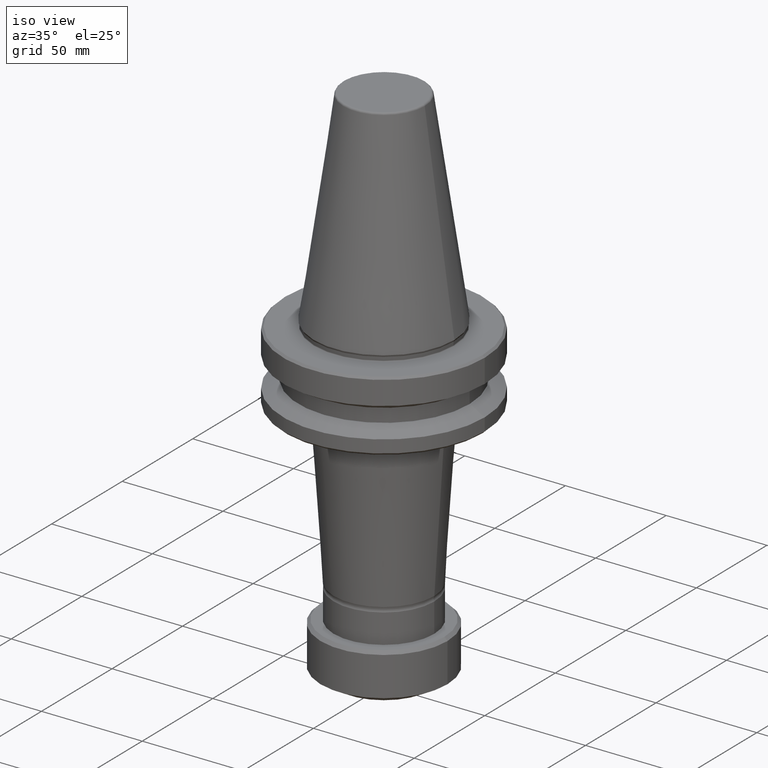
[diagram: clean part render]
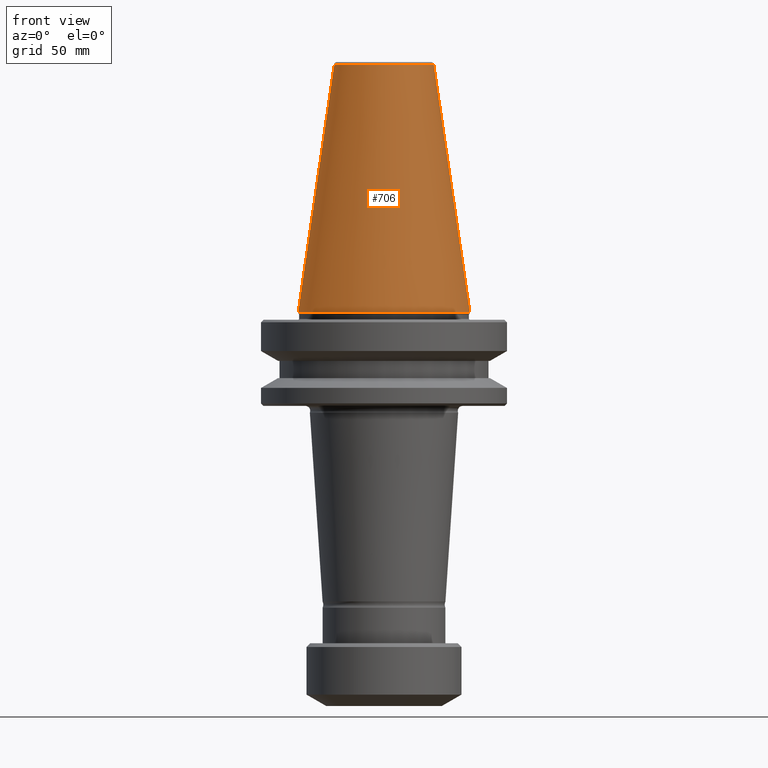
[diagram: tour spotlight — one face highlighted and labeled with its STEP entity id]
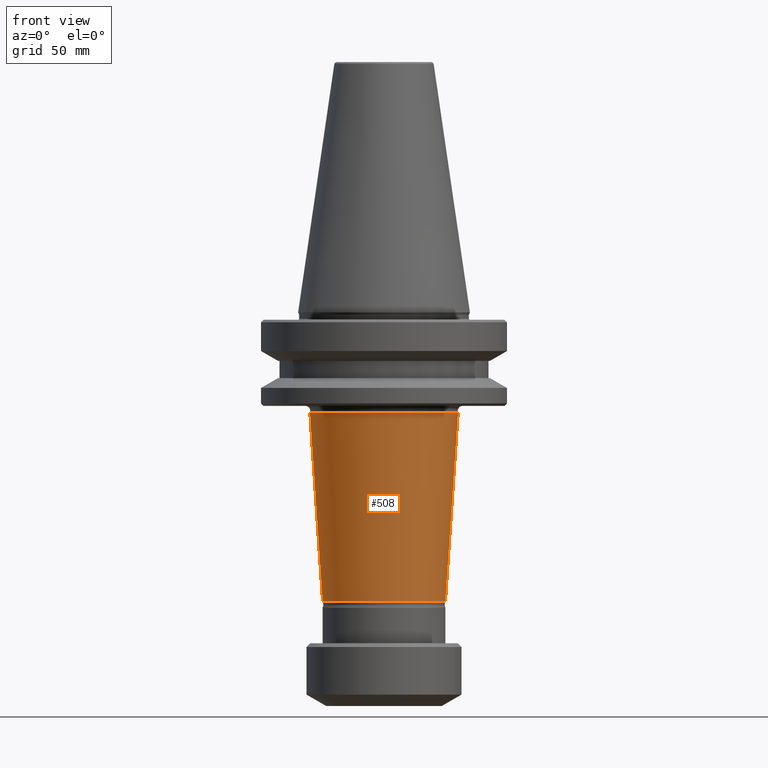
[diagram: tour spotlight — one face highlighted and labeled with its STEP entity id]
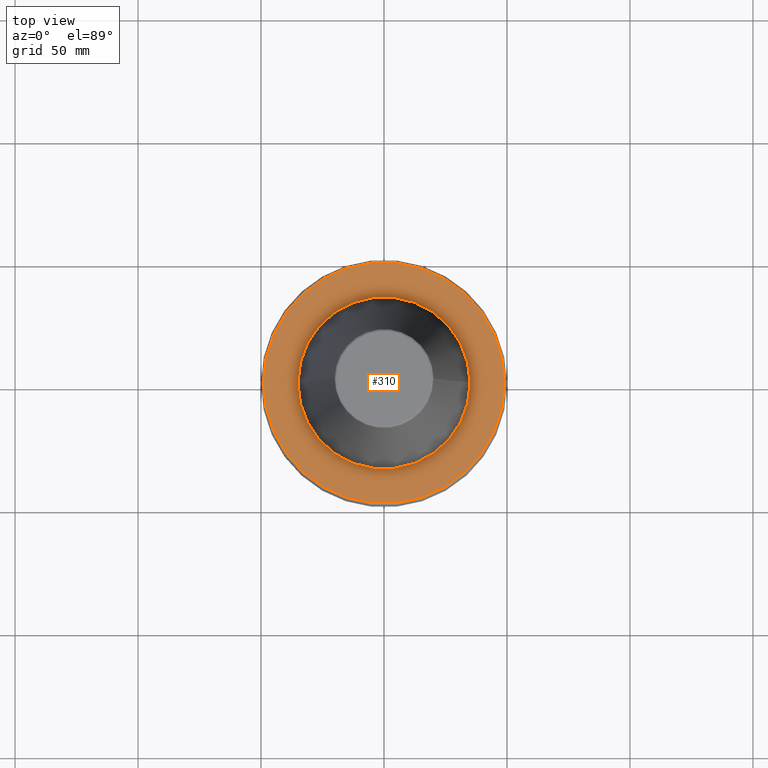
[diagram: tour spotlight — one face highlighted and labeled with its STEP entity id]
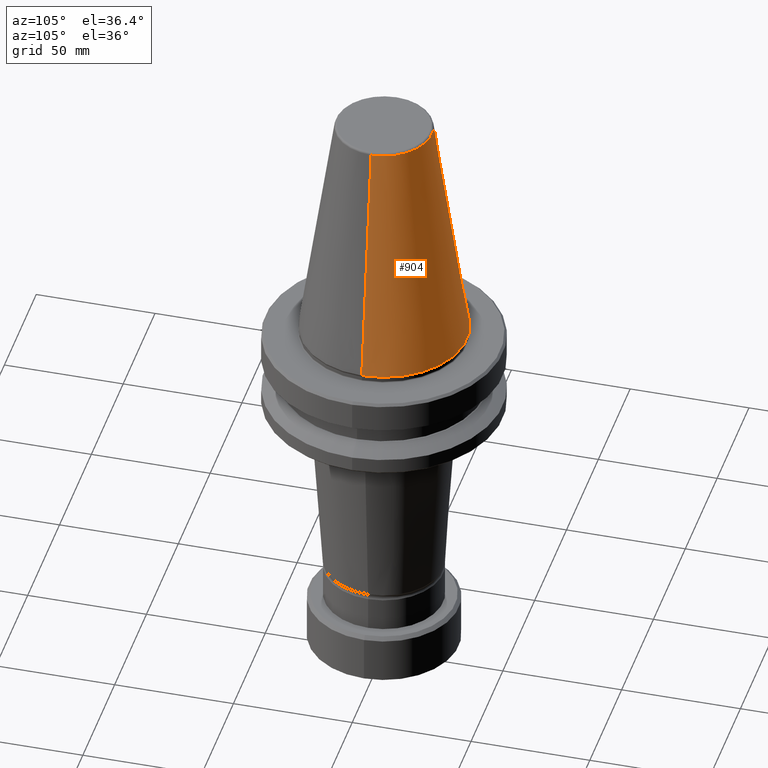
[diagram: tour spotlight — one face highlighted and labeled with its STEP entity id]
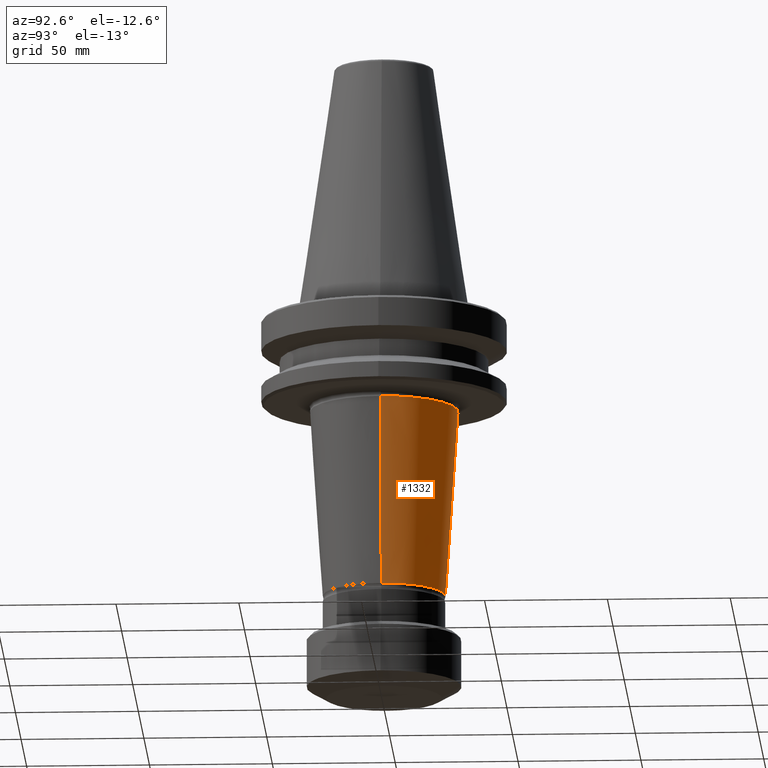
[diagram: tour spotlight — one face highlighted and labeled with its STEP entity id]
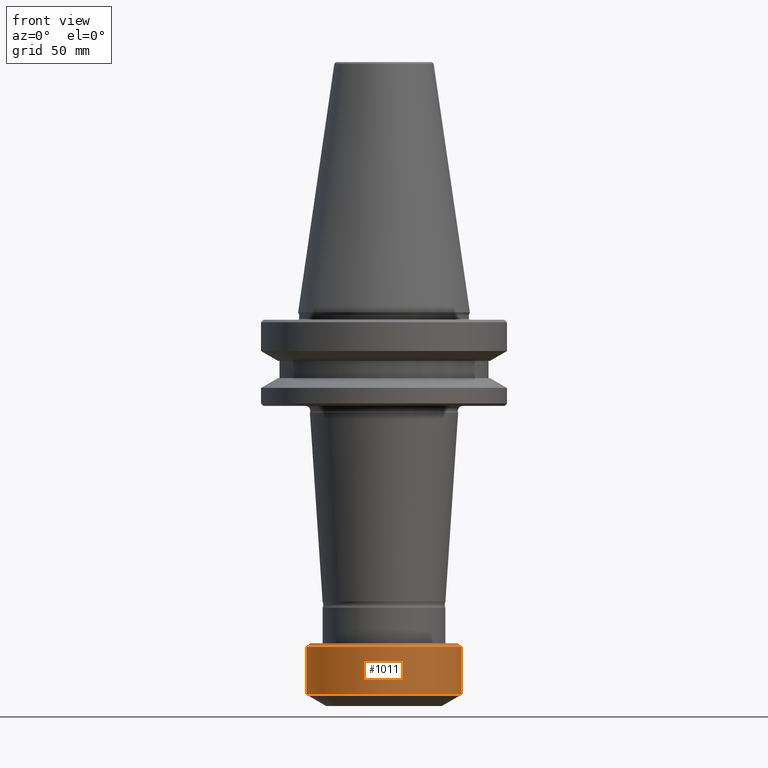
[diagram: tour spotlight — one face highlighted and labeled with its STEP entity id]
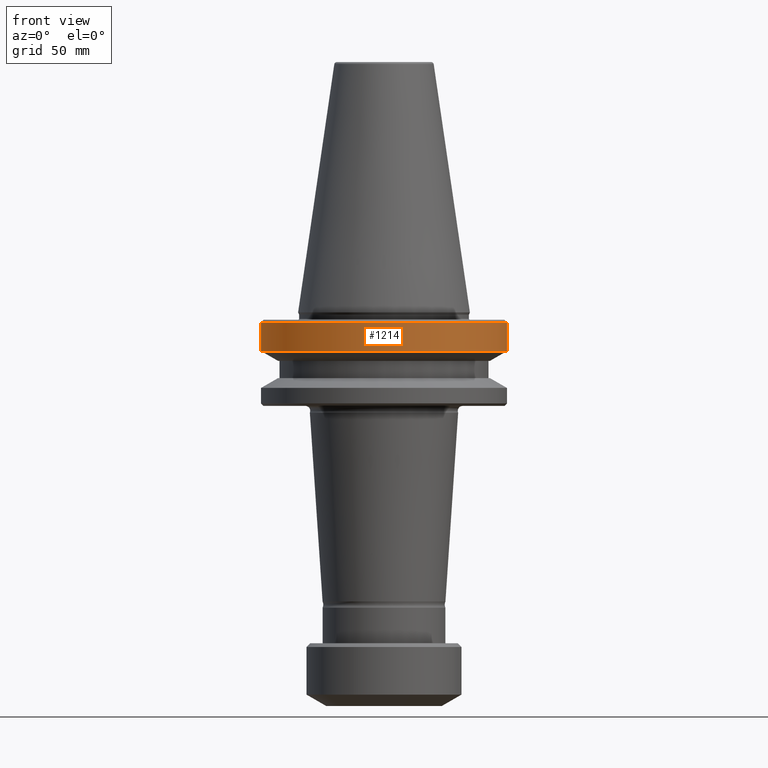
[diagram: tour spotlight — one face highlighted and labeled with its STEP entity id]
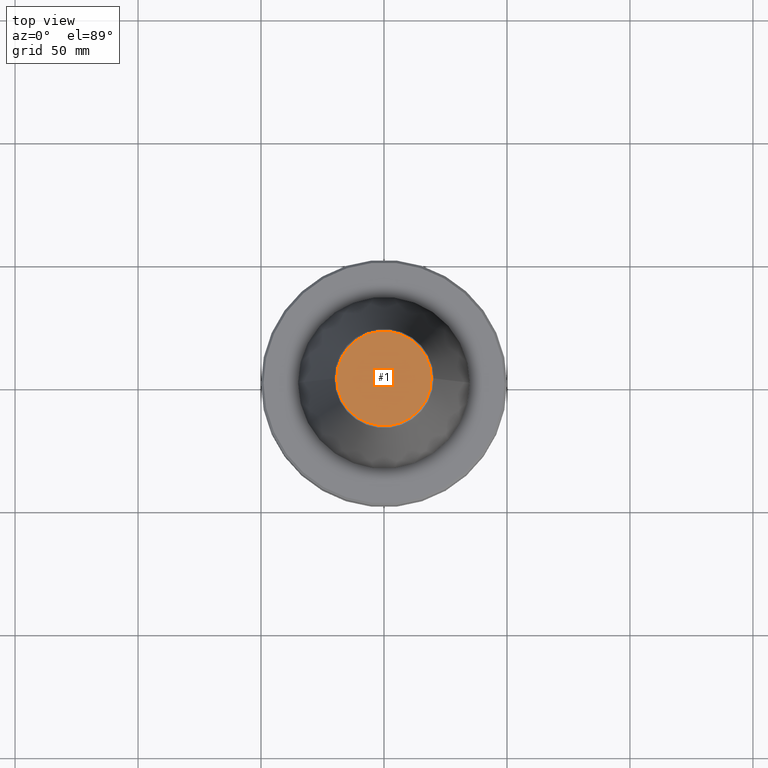
[diagram: tour spotlight — one face highlighted and labeled with its STEP entity id]
A machine part: a face-by-face anatomy tour. The part has 49 B-rep faces; the first image is the clean iso view, then the 8 largest visible faces are spotlighted one at a time (largest first), each with its STEP entity span.

Face 1 — front view, entity #706. In plain terms, the highlighted conical surface has half-angle 8.297 deg.
Definition (entity closure, byte-faithful):
#24 = ORIENTED_EDGE ( 'NONE', *, *, #807, .T. ) ;
#31 = DIRECTION ( 'NONE',  ( -0.0000000000000000000, -0.0000000000000000000, 1.000000000000000000 ) ) ;
#61 = AXIS2_PLACEMENT_3D ( 'NONE', #758, #31, #629 ) ;
#109 = ORIENTED_EDGE ( 'NONE', *, *, #1286, .T. ) ;
#110 = DIRECTION ( 'NONE',  ( 0.0000000000000000000, 0.0000000000000000000, -1.000000000000000000 ) ) ;
#144 = EDGE_LOOP ( 'NONE', ( #332, #1271, #109, #24 ) ) ;
#220 = VERTEX_POINT ( 'NONE', #654 ) ;
#258 = VERTEX_POINT ( 'NONE', #1202 ) ;
#319 = VECTOR ( 'NONE', #410, 1000.000000000000000 ) ;
#332 = ORIENTED_EDGE ( 'NONE', *, *, #1119, .F. ) ;
#343 = CARTESIAN_POINT ( 'NONE',  ( 0.0000000000000000000, 0.0000000000000000000, 0.0000000000000000000 ) ) ;
#368 = CARTESIAN_POINT ( 'NONE',  ( 34.92499999999964900, 4.277078946022088300E-015, 0.0000000000000000000 ) ) ;
#410 = DIRECTION ( 'NONE',  ( 0.1443082234293906200, 1.767266039134443000E-017, -0.9895327870518758600 ) ) ;
#455 = CIRCLE ( 'NONE', #61, 20.20381645192170700 ) ;
#589 = CIRCLE ( 'NONE', #1154, 34.92499999999964900 ) ;
#597 = CARTESIAN_POINT ( 'NONE',  ( 0.0000000000000000000, 0.0000000000000000000, 0.0000000000000000000 ) ) ;
#623 = CONICAL_SURFACE ( 'NONE', #977, 34.92499999999964900, 0.1448138426689054300 ) ;
#629 = DIRECTION ( 'NONE',  ( 1.000000000000000000, 0.0000000000000000000, 0.0000000000000000000 ) ) ;
#654 = CARTESIAN_POINT ( 'NONE',  ( -20.20381645192170700, 0.0000000000000000000, 100.9443082234284800 ) ) ;
#683 = FACE_OUTER_BOUND ( 'NONE', #144, .T. ) ;
#694 = DIRECTION ( 'NONE',  ( 1.000000000000000000, 0.0000000000000000000, 0.0000000000000000000 ) ) ;
#706 = ADVANCED_FACE ( 'NONE', ( #683 ), #623, .T. ) ;
#758 = CARTESIAN_POINT ( 'NONE',  ( 0.0000000000000000000, 0.0000000000000000000, 100.9443082234284800 ) ) ;
#759 = DIRECTION ( 'NONE',  ( -0.1443082234293906200, 0.0000000000000000000, -0.9895327870518758600 ) ) ;
#796 = DIRECTION ( 'NONE',  ( -0.0000000000000000000, -0.0000000000000000000, 1.000000000000000000 ) ) ;
#807 = EDGE_CURVE ( 'NONE', #940, #258, #589, .T. ) ;
#876 = CARTESIAN_POINT ( 'NONE',  ( 20.20381645192170700, 3.375666430431372200E-015, 100.9443082234284800 ) ) ;
#909 = VECTOR ( 'NONE', #759, 1000.000000000000000 ) ;
#940 = VERTEX_POINT ( 'NONE', #1252 ) ;
#944 = CARTESIAN_POINT ( 'NONE',  ( -34.92499999999964900, 0.0000000000000000000, 0.0000000000000000000 ) ) ;
#966 = DIRECTION ( 'NONE',  ( -1.000000000000000000, 0.0000000000000000000, 0.0000000000000000000 ) ) ;
#977 = AXIS2_PLACEMENT_3D ( 'NONE', #343, #110, #966 ) ;
#1108 = EDGE_CURVE ( 'NONE', #220, #1162, #455, .T. ) ;
#1119 = EDGE_CURVE ( 'NONE', #1162, #258, #1138, .T. ) ;
#1138 = LINE ( 'NONE', #368, #319 ) ;
#1154 = AXIS2_PLACEMENT_3D ( 'NONE', #597, #796, #694 ) ;
#1162 = VERTEX_POINT ( 'NONE', #876 ) ;
#1180 = LINE ( 'NONE', #944, #909 ) ;
#1202 = CARTESIAN_POINT ( 'NONE',  ( 34.92499999999964900, 0.0000000000000000000, 1.084202172485504400E-016 ) ) ;
#1252 = CARTESIAN_POINT ( 'NONE',  ( -34.92499999999964900, 4.277078946022088300E-015, 1.084202172485504400E-016 ) ) ;
#1271 = ORIENTED_EDGE ( 'NONE', *, *, #1108, .F. ) ;
#1286 = EDGE_CURVE ( 'NONE', #220, #940, #1180, .T. ) ;

Face 2 — front view, entity #508. In plain terms, the highlighted conical surface has half-angle 3.849 deg.
Definition (entity closure, byte-faithful):
#6 = ORIENTED_EDGE ( 'NONE', *, *, #493, .T. ) ;
#75 = ORIENTED_EDGE ( 'NONE', *, *, #196, .F. ) ;
#77 = LINE ( 'NONE', #561, #1142 ) ;
#84 = VERTEX_POINT ( 'NONE', #626 ) ;
#92 = DIRECTION ( 'NONE',  ( -0.06713488381875772100, 8.221652057977107500E-018, 0.9977439087133741500 ) ) ;
#93 = VERTEX_POINT ( 'NONE', #221 ) ;
#127 = CARTESIAN_POINT ( 'NONE',  ( 0.0000000000000000000, 0.0000000000000000000, -40.74897018305134800 ) ) ;
#154 = EDGE_LOOP ( 'NONE', ( #75, #6, #1005, #1075 ) ) ;
#189 = DIRECTION ( 'NONE',  ( -0.0000000000000000000, -0.0000000000000000000, 1.000000000000000000 ) ) ;
#196 = EDGE_CURVE ( 'NONE', #84, #1040, #1185, .T. ) ;
#221 = CARTESIAN_POINT ( 'NONE',  ( 24.97862353833690800, 0.0000000000000000000, -117.5384613677331600 ) ) ;
#256 = CIRCLE ( 'NONE', #1149, 30.14553412948550800 ) ;
#324 = CIRCLE ( 'NONE', #639, 24.97862353833690800 ) ;
#327 = CARTESIAN_POINT ( 'NONE',  ( 0.0000000000000000000, 0.0000000000000000000, -117.5384613677331600 ) ) ;
#409 = DIRECTION ( 'NONE',  ( 1.000000000000000000, 0.0000000000000000000, 0.0000000000000000000 ) ) ;
#457 = DIRECTION ( 'NONE',  ( -0.0000000000000000000, -0.0000000000000000000, 1.000000000000000000 ) ) ;
#468 = EDGE_CURVE ( 'NONE', #93, #490, #77, .T. ) ;
#490 = VERTEX_POINT ( 'NONE', #833 ) ;
#493 = EDGE_CURVE ( 'NONE', #84, #93, #324, .T. ) ;
#508 = ADVANCED_FACE ( 'NONE', ( #894 ), #851, .T. ) ;
#561 = CARTESIAN_POINT ( 'NONE',  ( 24.97862353833690800, 0.0000000000000000000, -117.5384613677331600 ) ) ;
#575 = CARTESIAN_POINT ( 'NONE',  ( -24.97862353833690800, 3.058999136333102700E-015, -117.5384613677331600 ) ) ;
#581 = DIRECTION ( 'NONE',  ( 0.06713488381875772100, 0.0000000000000000000, 0.9977439087133741500 ) ) ;
#600 = CARTESIAN_POINT ( 'NONE',  ( -30.14553412948550800, 3.691763188026171500E-015, -40.74897018305134800 ) ) ;
#626 = CARTESIAN_POINT ( 'NONE',  ( -24.97862353833690800, 3.058999136333102700E-015, -117.5384613677331600 ) ) ;
#639 = AXIS2_PLACEMENT_3D ( 'NONE', #327, #189, #1311 ) ;
#763 = CARTESIAN_POINT ( 'NONE',  ( 0.0000000000000000000, 0.0000000000000000000, -117.5384613677331600 ) ) ;
#833 = CARTESIAN_POINT ( 'NONE',  ( 30.14553412948550800, 0.0000000000000000000, -40.74897018305134800 ) ) ;
#851 = CONICAL_SURFACE ( 'NONE', #1207, 24.97862353833690800, 0.06718541690006753200 ) ;
#854 = DIRECTION ( 'NONE',  ( -0.0000000000000000000, -0.0000000000000000000, 1.000000000000000000 ) ) ;
#880 = EDGE_CURVE ( 'NONE', #1040, #490, #256, .T. ) ;
#894 = FACE_OUTER_BOUND ( 'NONE', #154, .T. ) ;
#913 = VECTOR ( 'NONE', #92, 1000.000000000000000 ) ;
#951 = DIRECTION ( 'NONE',  ( 1.000000000000000000, 0.0000000000000000000, 0.0000000000000000000 ) ) ;
#1005 = ORIENTED_EDGE ( 'NONE', *, *, #468, .T. ) ;
#1040 = VERTEX_POINT ( 'NONE', #600 ) ;
#1075 = ORIENTED_EDGE ( 'NONE', *, *, #880, .F. ) ;
#1142 = VECTOR ( 'NONE', #581, 1000.000000000000000 ) ;
#1149 = AXIS2_PLACEMENT_3D ( 'NONE', #127, #854, #951 ) ;
#1185 = LINE ( 'NONE', #575, #913 ) ;
#1207 = AXIS2_PLACEMENT_3D ( 'NONE', #763, #457, #409 ) ;
#1311 = DIRECTION ( 'NONE',  ( 1.000000000000000000, 0.0000000000000000000, 0.0000000000000000000 ) ) ;

Face 3 — top view, entity #310. In plain terms, the highlighted planar face has unit normal (0, 0, -1).
Definition (entity closure, byte-faithful):
#12 = CARTESIAN_POINT ( 'NONE',  ( 0.0000000000000000000, 49.00000000000015600, -3.000000000001334900 ) ) ;
#19 = EDGE_CURVE ( 'NONE', #994, #431, #1297, .T. ) ;
#30 = CIRCLE ( 'NONE', #930, 49.00000000000015600 ) ;
#34 = AXIS2_PLACEMENT_3D ( 'NONE', #522, #970, #1094 ) ;
#46 = DIRECTION ( 'NONE',  ( 1.000000000000000000, 0.0000000000000000000, 0.0000000000000000000 ) ) ;
#98 = PLANE ( 'NONE',  #607 ) ;
#114 = CARTESIAN_POINT ( 'NONE',  ( -34.99999999999992200, 4.286263797015727000E-015, -3.000000000001418400 ) ) ;
#176 = ORIENTED_EDGE ( 'NONE', *, *, #866, .F. ) ;
#228 = CARTESIAN_POINT ( 'NONE',  ( 0.0000000000000000000, 0.0000000000000000000, -3.000000000001334900 ) ) ;
#243 = CARTESIAN_POINT ( 'NONE',  ( 0.0000000000000000000, 0.0000000000000000000, -3.000000000001334900 ) ) ;
#250 = FACE_OUTER_BOUND ( 'NONE', #266, .T. ) ;
#266 = EDGE_LOOP ( 'NONE', ( #1325, #1225 ) ) ;
#310 = ADVANCED_FACE ( 'NONE', ( #1064, #250 ), #98, .F. ) ;
#431 = VERTEX_POINT ( 'NONE', #570 ) ;
#437 = EDGE_CURVE ( 'NONE', #775, #877, #628, .T. ) ;
#498 = DIRECTION ( 'NONE',  ( -1.000000000000000000, 0.0000000000000000000, -0.0000000000000000000 ) ) ;
#522 = CARTESIAN_POINT ( 'NONE',  ( 0.0000000000000000000, 0.0000000000000000000, -3.000000000001334900 ) ) ;
#526 = EDGE_CURVE ( 'NONE', #431, #994, #30, .T. ) ;
#556 = CIRCLE ( 'NONE', #34, 34.99999999999992200 ) ;
#570 = CARTESIAN_POINT ( 'NONE',  ( -49.00000000000015600, 0.0000000000000000000, -3.000000000001334900 ) ) ;
#587 = DIRECTION ( 'NONE',  ( 1.000000000000000000, 0.0000000000000000000, 0.0000000000000000000 ) ) ;
#607 = AXIS2_PLACEMENT_3D ( 'NONE', #12, #1238, #498 ) ;
#628 = CIRCLE ( 'NONE', #1256, 34.99999999999992200 ) ;
#631 = DIRECTION ( 'NONE',  ( 1.000000000000000000, 0.0000000000000000000, 0.0000000000000000000 ) ) ;
#635 = CARTESIAN_POINT ( 'NONE',  ( 34.99999999999992200, 0.0000000000000000000, -3.000000000001418400 ) ) ;
#681 = ORIENTED_EDGE ( 'NONE', *, *, #437, .F. ) ;
#708 = CARTESIAN_POINT ( 'NONE',  ( 0.0000000000000000000, 0.0000000000000000000, -3.000000000001334900 ) ) ;
#775 = VERTEX_POINT ( 'NONE', #114 ) ;
#783 = DIRECTION ( 'NONE',  ( -0.0000000000000000000, -0.0000000000000000000, 1.000000000000000000 ) ) ;
#866 = EDGE_CURVE ( 'NONE', #877, #775, #556, .T. ) ;
#877 = VERTEX_POINT ( 'NONE', #635 ) ;
#924 = DIRECTION ( 'NONE',  ( -0.0000000000000000000, -0.0000000000000000000, 1.000000000000000000 ) ) ;
#930 = AXIS2_PLACEMENT_3D ( 'NONE', #708, #924, #587 ) ;
#970 = DIRECTION ( 'NONE',  ( -0.0000000000000000000, -0.0000000000000000000, 1.000000000000000000 ) ) ;
#994 = VERTEX_POINT ( 'NONE', #1260 ) ;
#1064 = FACE_BOUND ( 'NONE', #1190, .T. ) ;
#1094 = DIRECTION ( 'NONE',  ( 1.000000000000000000, 0.0000000000000000000, 0.0000000000000000000 ) ) ;
#1190 = EDGE_LOOP ( 'NONE', ( #176, #681 ) ) ;
#1225 = ORIENTED_EDGE ( 'NONE', *, *, #19, .T. ) ;
#1230 = AXIS2_PLACEMENT_3D ( 'NONE', #228, #1242, #631 ) ;
#1238 = DIRECTION ( 'NONE',  ( 0.0000000000000000000, 0.0000000000000000000, -1.000000000000000000 ) ) ;
#1242 = DIRECTION ( 'NONE',  ( -0.0000000000000000000, -0.0000000000000000000, 1.000000000000000000 ) ) ;
#1256 = AXIS2_PLACEMENT_3D ( 'NONE', #243, #783, #46 ) ;
#1260 = CARTESIAN_POINT ( 'NONE',  ( 49.00000000000015600, 6.062001655779417400E-015, -3.000000000001334900 ) ) ;
#1297 = CIRCLE ( 'NONE', #1230, 49.00000000000015600 ) ;
#1325 = ORIENTED_EDGE ( 'NONE', *, *, #526, .T. ) ;

Face 4 — auxiliary view, entity #904. In plain terms, the highlighted conical surface has half-angle 8.297 deg.
Definition (entity closure, byte-faithful):
#45 = CIRCLE ( 'NONE', #1179, 34.92499999999964900 ) ;
#182 = CARTESIAN_POINT ( 'NONE',  ( 0.0000000000000000000, 0.0000000000000000000, 0.0000000000000000000 ) ) ;
#220 = VERTEX_POINT ( 'NONE', #654 ) ;
#258 = VERTEX_POINT ( 'NONE', #1202 ) ;
#309 = EDGE_CURVE ( 'NONE', #1162, #220, #515, .T. ) ;
#319 = VECTOR ( 'NONE', #410, 1000.000000000000000 ) ;
#368 = CARTESIAN_POINT ( 'NONE',  ( 34.92499999999964900, 4.277078946022088300E-015, 0.0000000000000000000 ) ) ;
#410 = DIRECTION ( 'NONE',  ( 0.1443082234293906200, 1.767266039134443000E-017, -0.9895327870518758600 ) ) ;
#416 = EDGE_LOOP ( 'NONE', ( #566, #1310, #1181, #1000 ) ) ;
#515 = CIRCLE ( 'NONE', #548, 20.20381645192170700 ) ;
#518 = AXIS2_PLACEMENT_3D ( 'NONE', #182, #1264, #627 ) ;
#548 = AXIS2_PLACEMENT_3D ( 'NONE', #1128, #836, #1131 ) ;
#566 = ORIENTED_EDGE ( 'NONE', *, *, #309, .F. ) ;
#627 = DIRECTION ( 'NONE',  ( -1.000000000000000000, 0.0000000000000000000, 0.0000000000000000000 ) ) ;
#638 = DIRECTION ( 'NONE',  ( -0.0000000000000000000, -0.0000000000000000000, 1.000000000000000000 ) ) ;
#654 = CARTESIAN_POINT ( 'NONE',  ( -20.20381645192170700, 0.0000000000000000000, 100.9443082234284800 ) ) ;
#759 = DIRECTION ( 'NONE',  ( -0.1443082234293906200, 0.0000000000000000000, -0.9895327870518758600 ) ) ;
#836 = DIRECTION ( 'NONE',  ( -0.0000000000000000000, -0.0000000000000000000, 1.000000000000000000 ) ) ;
#845 = EDGE_CURVE ( 'NONE', #258, #940, #45, .T. ) ;
#876 = CARTESIAN_POINT ( 'NONE',  ( 20.20381645192170700, 3.375666430431372200E-015, 100.9443082234284800 ) ) ;
#904 = ADVANCED_FACE ( 'NONE', ( #1284 ), #1249, .T. ) ;
#909 = VECTOR ( 'NONE', #759, 1000.000000000000000 ) ;
#940 = VERTEX_POINT ( 'NONE', #1252 ) ;
#944 = CARTESIAN_POINT ( 'NONE',  ( -34.92499999999964900, 0.0000000000000000000, 0.0000000000000000000 ) ) ;
#1000 = ORIENTED_EDGE ( 'NONE', *, *, #1286, .F. ) ;
#1078 = CARTESIAN_POINT ( 'NONE',  ( 0.0000000000000000000, 0.0000000000000000000, 0.0000000000000000000 ) ) ;
#1119 = EDGE_CURVE ( 'NONE', #1162, #258, #1138, .T. ) ;
#1128 = CARTESIAN_POINT ( 'NONE',  ( 0.0000000000000000000, 0.0000000000000000000, 100.9443082234284800 ) ) ;
#1131 = DIRECTION ( 'NONE',  ( 1.000000000000000000, 0.0000000000000000000, 0.0000000000000000000 ) ) ;
#1138 = LINE ( 'NONE', #368, #319 ) ;
#1162 = VERTEX_POINT ( 'NONE', #876 ) ;
#1179 = AXIS2_PLACEMENT_3D ( 'NONE', #1078, #638, #1295 ) ;
#1180 = LINE ( 'NONE', #944, #909 ) ;
#1181 = ORIENTED_EDGE ( 'NONE', *, *, #845, .T. ) ;
#1202 = CARTESIAN_POINT ( 'NONE',  ( 34.92499999999964900, 0.0000000000000000000, 1.084202172485504400E-016 ) ) ;
#1249 = CONICAL_SURFACE ( 'NONE', #518, 34.92499999999964900, 0.1448138426689054300 ) ;
#1252 = CARTESIAN_POINT ( 'NONE',  ( -34.92499999999964900, 4.277078946022088300E-015, 1.084202172485504400E-016 ) ) ;
#1264 = DIRECTION ( 'NONE',  ( 0.0000000000000000000, 0.0000000000000000000, -1.000000000000000000 ) ) ;
#1284 = FACE_OUTER_BOUND ( 'NONE', #416, .T. ) ;
#1286 = EDGE_CURVE ( 'NONE', #220, #940, #1180, .T. ) ;
#1295 = DIRECTION ( 'NONE',  ( 1.000000000000000000, 0.0000000000000000000, 0.0000000000000000000 ) ) ;
#1310 = ORIENTED_EDGE ( 'NONE', *, *, #1119, .T. ) ;

Face 5 — auxiliary view, entity #1332. In plain terms, the highlighted conical surface has half-angle 3.849 deg.
Definition (entity closure, byte-faithful):
#77 = LINE ( 'NONE', #561, #1142 ) ;
#84 = VERTEX_POINT ( 'NONE', #626 ) ;
#92 = DIRECTION ( 'NONE',  ( -0.06713488381875772100, 8.221652057977107500E-018, 0.9977439087133741500 ) ) ;
#93 = VERTEX_POINT ( 'NONE', #221 ) ;
#178 = CARTESIAN_POINT ( 'NONE',  ( 0.0000000000000000000, 0.0000000000000000000, -117.5384613677331600 ) ) ;
#188 = DIRECTION ( 'NONE',  ( -0.0000000000000000000, -0.0000000000000000000, 1.000000000000000000 ) ) ;
#196 = EDGE_CURVE ( 'NONE', #84, #1040, #1185, .T. ) ;
#221 = CARTESIAN_POINT ( 'NONE',  ( 24.97862353833690800, 0.0000000000000000000, -117.5384613677331600 ) ) ;
#262 = EDGE_CURVE ( 'NONE', #490, #1040, #647, .T. ) ;
#322 = ORIENTED_EDGE ( 'NONE', *, *, #973, .T. ) ;
#419 = DIRECTION ( 'NONE',  ( 1.000000000000000000, 0.0000000000000000000, 0.0000000000000000000 ) ) ;
#439 = DIRECTION ( 'NONE',  ( -0.0000000000000000000, -0.0000000000000000000, 1.000000000000000000 ) ) ;
#468 = EDGE_CURVE ( 'NONE', #93, #490, #77, .T. ) ;
#488 = DIRECTION ( 'NONE',  ( -0.0000000000000000000, -0.0000000000000000000, 1.000000000000000000 ) ) ;
#490 = VERTEX_POINT ( 'NONE', #833 ) ;
#561 = CARTESIAN_POINT ( 'NONE',  ( 24.97862353833690800, 0.0000000000000000000, -117.5384613677331600 ) ) ;
#575 = CARTESIAN_POINT ( 'NONE',  ( -24.97862353833690800, 3.058999136333102700E-015, -117.5384613677331600 ) ) ;
#577 = FACE_OUTER_BOUND ( 'NONE', #982, .T. ) ;
#581 = DIRECTION ( 'NONE',  ( 0.06713488381875772100, 0.0000000000000000000, 0.9977439087133741500 ) ) ;
#593 = DIRECTION ( 'NONE',  ( 1.000000000000000000, 0.0000000000000000000, 0.0000000000000000000 ) ) ;
#600 = CARTESIAN_POINT ( 'NONE',  ( -30.14553412948550800, 3.691763188026171500E-015, -40.74897018305134800 ) ) ;
#626 = CARTESIAN_POINT ( 'NONE',  ( -24.97862353833690800, 3.058999136333102700E-015, -117.5384613677331600 ) ) ;
#634 = ORIENTED_EDGE ( 'NONE', *, *, #262, .F. ) ;
#647 = CIRCLE ( 'NONE', #804, 30.14553412948550800 ) ;
#734 = AXIS2_PLACEMENT_3D ( 'NONE', #178, #488, #593 ) ;
#767 = CARTESIAN_POINT ( 'NONE',  ( 0.0000000000000000000, 0.0000000000000000000, -40.74897018305134800 ) ) ;
#804 = AXIS2_PLACEMENT_3D ( 'NONE', #767, #188, #419 ) ;
#816 = CONICAL_SURFACE ( 'NONE', #734, 24.97862353833690800, 0.06718541690006753200 ) ;
#823 = CARTESIAN_POINT ( 'NONE',  ( 0.0000000000000000000, 0.0000000000000000000, -117.5384613677331600 ) ) ;
#826 = DIRECTION ( 'NONE',  ( 1.000000000000000000, 0.0000000000000000000, 0.0000000000000000000 ) ) ;
#833 = CARTESIAN_POINT ( 'NONE',  ( 30.14553412948550800, 0.0000000000000000000, -40.74897018305134800 ) ) ;
#842 = AXIS2_PLACEMENT_3D ( 'NONE', #823, #439, #826 ) ;
#913 = VECTOR ( 'NONE', #92, 1000.000000000000000 ) ;
#917 = ORIENTED_EDGE ( 'NONE', *, *, #196, .T. ) ;
#973 = EDGE_CURVE ( 'NONE', #93, #84, #1211, .T. ) ;
#982 = EDGE_LOOP ( 'NONE', ( #322, #917, #634, #1298 ) ) ;
#1040 = VERTEX_POINT ( 'NONE', #600 ) ;
#1142 = VECTOR ( 'NONE', #581, 1000.000000000000000 ) ;
#1185 = LINE ( 'NONE', #575, #913 ) ;
#1211 = CIRCLE ( 'NONE', #842, 24.97862353833690800 ) ;
#1298 = ORIENTED_EDGE ( 'NONE', *, *, #468, .F. ) ;
#1332 = ADVANCED_FACE ( 'NONE', ( #577 ), #816, .T. ) ;

Face 6 — front view, entity #1011. In plain terms, the highlighted cylindrical surface (partial cylindrical patch) has radius 31.5 mm, axis along (-0, -0, 1).
Definition (entity closure, byte-faithful):
#25 = CARTESIAN_POINT ( 'NONE',  ( 0.0000000000000000000, 0.0000000000000000000, -155.3858004746869300 ) ) ;
#47 = LINE ( 'NONE', #1293, #558 ) ;
#63 = EDGE_CURVE ( 'NONE', #495, #910, #1263, .T. ) ;
#122 = DIRECTION ( 'NONE',  ( -0.0000000000000000000, -0.0000000000000000000, 1.000000000000000000 ) ) ;
#130 = DIRECTION ( 'NONE',  ( 1.000000000000000000, 0.0000000000000000000, 0.0000000000000000000 ) ) ;
#152 = DIRECTION ( 'NONE',  ( -0.0000000000000000000, -0.0000000000000000000, 1.000000000000000000 ) ) ;
#219 = AXIS2_PLACEMENT_3D ( 'NONE', #1049, #609, #130 ) ;
#252 = ORIENTED_EDGE ( 'NONE', *, *, #512, .T. ) ;
#264 = VERTEX_POINT ( 'NONE', #948 ) ;
#267 = CARTESIAN_POINT ( 'NONE',  ( 0.0000000000000000000, 0.0000000000000000000, -136.0046026282869000 ) ) ;
#284 = ORIENTED_EDGE ( 'NONE', *, *, #959, .T. ) ;
#288 = LINE ( 'NONE', #1038, #838 ) ;
#355 = DIRECTION ( 'NONE',  ( -0.0000000000000000000, -0.0000000000000000000, 1.000000000000000000 ) ) ;
#430 = DIRECTION ( 'NONE',  ( -0.0000000000000000000, -0.0000000000000000000, 1.000000000000000000 ) ) ;
#450 = VERTEX_POINT ( 'NONE', #656 ) ;
#495 = VERTEX_POINT ( 'NONE', #1296 ) ;
#512 = EDGE_CURVE ( 'NONE', #450, #910, #288, .T. ) ;
#539 = DIRECTION ( 'NONE',  ( 1.000000000000000000, 0.0000000000000000000, 0.0000000000000000000 ) ) ;
#543 = CARTESIAN_POINT ( 'NONE',  ( 31.50000000000000000, 0.0000000000000000000, -136.0046026282869000 ) ) ;
#558 = VECTOR ( 'NONE', #430, 1000.000000000000000 ) ;
#590 = AXIS2_PLACEMENT_3D ( 'NONE', #25, #122, #539 ) ;
#609 = DIRECTION ( 'NONE',  ( -0.0000000000000000000, -0.0000000000000000000, 1.000000000000000000 ) ) ;
#656 = CARTESIAN_POINT ( 'NONE',  ( 31.50000000000002800, 0.0000000000000000000, -155.3858004746869300 ) ) ;
#696 = ORIENTED_EDGE ( 'NONE', *, *, #63, .F. ) ;
#699 = CIRCLE ( 'NONE', #590, 31.50000000000002800 ) ;
#812 = ORIENTED_EDGE ( 'NONE', *, *, #1125, .F. ) ;
#838 = VECTOR ( 'NONE', #152, 1000.000000000000000 ) ;
#863 = DIRECTION ( 'NONE',  ( 1.000000000000000000, 0.0000000000000000000, 0.0000000000000000000 ) ) ;
#910 = VERTEX_POINT ( 'NONE', #543 ) ;
#948 = CARTESIAN_POINT ( 'NONE',  ( -31.50000000000002800, 3.857637417314166600E-015, -155.3858004746869300 ) ) ;
#958 = FACE_OUTER_BOUND ( 'NONE', #1240, .T. ) ;
#959 = EDGE_CURVE ( 'NONE', #264, #450, #699, .T. ) ;
#1011 = ADVANCED_FACE ( 'NONE', ( #958 ), #1196, .T. ) ;
#1038 = CARTESIAN_POINT ( 'NONE',  ( 31.50000000000001400, 0.0000000000000000000, 128.7093681790917400 ) ) ;
#1049 = CARTESIAN_POINT ( 'NONE',  ( 0.0000000000000000000, 0.0000000000000000000, 128.7093681790917400 ) ) ;
#1125 = EDGE_CURVE ( 'NONE', #264, #495, #47, .T. ) ;
#1175 = AXIS2_PLACEMENT_3D ( 'NONE', #267, #355, #863 ) ;
#1196 = CYLINDRICAL_SURFACE ( 'NONE', #219, 31.50000000000001400 ) ;
#1240 = EDGE_LOOP ( 'NONE', ( #812, #284, #252, #696 ) ) ;
#1263 = CIRCLE ( 'NONE', #1175, 31.50000000000000000 ) ;
#1293 = CARTESIAN_POINT ( 'NONE',  ( -31.50000000000001400, 3.857637417314164300E-015, 128.7093681790917400 ) ) ;
#1296 = CARTESIAN_POINT ( 'NONE',  ( -31.50000000000000000, 3.857637417314163500E-015, -136.0046026282869000 ) ) ;

Face 7 — front view, entity #1214. In plain terms, the highlighted cylindrical surface (partial cylindrical patch) has radius 50 mm, axis along (-0, -0, 1).
Definition (entity closure, byte-faithful):
#2 = CARTESIAN_POINT ( 'NONE',  ( -50.00000000000015600, 6.123233995736785000E-015, 138.9069148892923000 ) ) ;
#50 = CIRCLE ( 'NONE', #677, 50.00000000000015600 ) ;
#59 = ORIENTED_EDGE ( 'NONE', *, *, #492, .T. ) ;
#66 = LINE ( 'NONE', #722, #611 ) ;
#143 = ORIENTED_EDGE ( 'NONE', *, *, #978, .F. ) ;
#150 = LINE ( 'NONE', #2, #1107 ) ;
#237 = EDGE_CURVE ( 'NONE', #524, #870, #66, .T. ) ;
#328 = VERTEX_POINT ( 'NONE', #665 ) ;
#364 = DIRECTION ( 'NONE',  ( -0.0000000000000000000, -0.0000000000000000000, 1.000000000000000000 ) ) ;
#463 = DIRECTION ( 'NONE',  ( -0.0000000000000000000, -0.0000000000000000000, 1.000000000000000000 ) ) ;
#481 = CARTESIAN_POINT ( 'NONE',  ( 0.0000000000000000000, 0.0000000000000000000, -15.70022000322779500 ) ) ;
#492 = EDGE_CURVE ( 'NONE', #846, #524, #50, .T. ) ;
#524 = VERTEX_POINT ( 'NONE', #1150 ) ;
#540 = CARTESIAN_POINT ( 'NONE',  ( 0.0000000000000000000, 0.0000000000000000000, -4.000000000001335800 ) ) ;
#586 = DIRECTION ( 'NONE',  ( -0.0000000000000000000, -0.0000000000000000000, 1.000000000000000000 ) ) ;
#611 = VECTOR ( 'NONE', #586, 1000.000000000000000 ) ;
#645 = DIRECTION ( 'NONE',  ( -0.0000000000000000000, -0.0000000000000000000, 1.000000000000000000 ) ) ;
#665 = CARTESIAN_POINT ( 'NONE',  ( -50.00000000000015600, 6.123233995736785000E-015, -4.000000000001335800 ) ) ;
#677 = AXIS2_PLACEMENT_3D ( 'NONE', #481, #463, #803 ) ;
#722 = CARTESIAN_POINT ( 'NONE',  ( 50.00000000000015600, 0.0000000000000000000, 138.9069148892923000 ) ) ;
#732 = CYLINDRICAL_SURFACE ( 'NONE', #1118, 50.00000000000015600 ) ;
#803 = DIRECTION ( 'NONE',  ( 1.000000000000000000, 0.0000000000000000000, 0.0000000000000000000 ) ) ;
#809 = DIRECTION ( 'NONE',  ( -0.0000000000000000000, -0.0000000000000000000, 1.000000000000000000 ) ) ;
#846 = VERTEX_POINT ( 'NONE', #1006 ) ;
#864 = ORIENTED_EDGE ( 'NONE', *, *, #1281, .F. ) ;
#870 = VERTEX_POINT ( 'NONE', #967 ) ;
#885 = EDGE_LOOP ( 'NONE', ( #143, #59, #1103, #864 ) ) ;
#903 = DIRECTION ( 'NONE',  ( 1.000000000000000000, 0.0000000000000000000, 0.0000000000000000000 ) ) ;
#938 = CIRCLE ( 'NONE', #1336, 50.00000000000015600 ) ;
#961 = DIRECTION ( 'NONE',  ( 1.000000000000000000, 0.0000000000000000000, 0.0000000000000000000 ) ) ;
#967 = CARTESIAN_POINT ( 'NONE',  ( 50.00000000000015600, 0.0000000000000000000, -4.000000000001335800 ) ) ;
#978 = EDGE_CURVE ( 'NONE', #846, #328, #150, .T. ) ;
#1006 = CARTESIAN_POINT ( 'NONE',  ( -50.00000000000015600, 6.123233995736785000E-015, -15.70022000322779500 ) ) ;
#1008 = FACE_OUTER_BOUND ( 'NONE', #885, .T. ) ;
#1103 = ORIENTED_EDGE ( 'NONE', *, *, #237, .T. ) ;
#1107 = VECTOR ( 'NONE', #645, 1000.000000000000000 ) ;
#1118 = AXIS2_PLACEMENT_3D ( 'NONE', #1299, #364, #903 ) ;
#1150 = CARTESIAN_POINT ( 'NONE',  ( 50.00000000000015600, 0.0000000000000000000, -15.70022000322779500 ) ) ;
#1214 = ADVANCED_FACE ( 'NONE', ( #1008 ), #732, .T. ) ;
#1281 = EDGE_CURVE ( 'NONE', #328, #870, #938, .T. ) ;
#1299 = CARTESIAN_POINT ( 'NONE',  ( 0.0000000000000000000, 0.0000000000000000000, 138.9069148892923000 ) ) ;
#1336 = AXIS2_PLACEMENT_3D ( 'NONE', #540, #809, #961 ) ;

Face 8 — top view, entity #1. In plain terms, the highlighted planar face has unit normal (0, 0, -1).
Definition (entity closure, byte-faithful):
#1 = ADVANCED_FACE ( 'NONE', ( #1055 ), #433, .F. ) ;
#22 = EDGE_LOOP ( 'NONE', ( #129, #1051 ) ) ;
#26 = EDGE_CURVE ( 'NONE', #104, #164, #744, .T. ) ;
#53 = AXIS2_PLACEMENT_3D ( 'NONE', #835, #550, #1215 ) ;
#73 = EDGE_CURVE ( 'NONE', #164, #104, #204, .T. ) ;
#104 = VERTEX_POINT ( 'NONE', #1079 ) ;
#112 = DIRECTION ( 'NONE',  ( -0.0000000000000000000, -0.0000000000000000000, 1.000000000000000000 ) ) ;
#129 = ORIENTED_EDGE ( 'NONE', *, *, #73, .T. ) ;
#164 = VERTEX_POINT ( 'NONE', #636 ) ;
#204 = CIRCLE ( 'NONE', #736, 19.21428366486976800 ) ;
#347 = CARTESIAN_POINT ( 'NONE',  ( 0.0000000000000000000, 0.0000000000000000000, 101.7999999999989300 ) ) ;
#433 = PLANE ( 'NONE',  #53 ) ;
#550 = DIRECTION ( 'NONE',  ( 0.0000000000000000000, 0.0000000000000000000, -1.000000000000000000 ) ) ;
#636 = CARTESIAN_POINT ( 'NONE',  ( 19.21428366486976800, 0.0000000000000000000, 101.7999999999989300 ) ) ;
#711 = DIRECTION ( 'NONE',  ( 1.000000000000000000, 0.0000000000000000000, 0.0000000000000000000 ) ) ;
#736 = AXIS2_PLACEMENT_3D ( 'NONE', #347, #1321, #711 ) ;
#744 = CIRCLE ( 'NONE', #1277, 19.21428366486976800 ) ;
#811 = CARTESIAN_POINT ( 'NONE',  ( 0.0000000000000000000, 0.0000000000000000000, 101.7999999999989300 ) ) ;
#835 = CARTESIAN_POINT ( 'NONE',  ( 0.0000000000000000000, 19.21428366486976800, 101.7999999999989200 ) ) ;
#1004 = DIRECTION ( 'NONE',  ( 1.000000000000000000, 0.0000000000000000000, 0.0000000000000000000 ) ) ;
#1051 = ORIENTED_EDGE ( 'NONE', *, *, #26, .T. ) ;
#1055 = FACE_OUTER_BOUND ( 'NONE', #22, .T. ) ;
#1079 = CARTESIAN_POINT ( 'NONE',  ( -19.21428366486976800, 2.413662506824926600E-015, 101.7999999999989300 ) ) ;
#1215 = DIRECTION ( 'NONE',  ( -1.000000000000000000, 0.0000000000000000000, -0.0000000000000000000 ) ) ;
#1277 = AXIS2_PLACEMENT_3D ( 'NONE', #811, #112, #1004 ) ;
#1321 = DIRECTION ( 'NONE',  ( -0.0000000000000000000, -0.0000000000000000000, 1.000000000000000000 ) ) ;